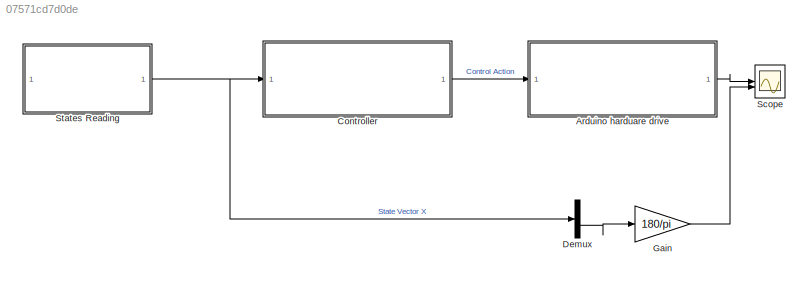
MODEL slx_07571cd7d0de
KIND model
CONFIG AbsTol = auto
CONFIG EnableMultiTasking = on
CONFIG FixedStep = auto
CONFIG MaxStep = auto
CONFIG MinStep = auto
CONFIG RelTol = 1e-3
CONFIG SampleTimeConstraint = Unconstrained
CONFIG SolverName = ode45
CONFIG StartTime = 0.0
CONFIG StopTime = 10.0
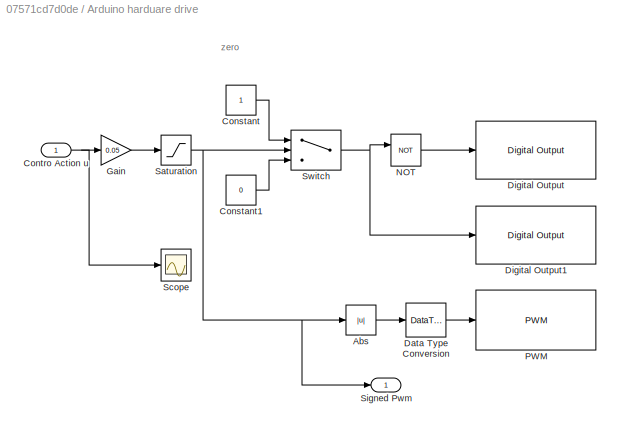
BLOCK [SubSystem] Arduino harduare drive
BLOCK [Abs] Arduino harduare drive/Abs
  SaturateOnIntegerOverflow = off
BLOCK [Constant] Arduino harduare drive/Constant
BLOCK [Constant] Arduino harduare drive/Constant1
  Value = 0
BLOCK [Inport] Arduino harduare drive/Contro Action u
BLOCK [DataTypeConversion] Arduino harduare drive/Data Type Conversion
  OutDataTypeStr = uint16
  RndMeth = Floor
  SaturateOnIntegerOverflow = off
BLOCK [Reference] Arduino harduare drive/Digital Output  REF=arduinolib/Digital Output
  SourceBlock = arduinolib/Digital Output
  SourceType = Arduino Digital Output
BLOCK [Reference] Arduino harduare drive/Digital Output1  REF=arduinolib/Digital Output
  SourceBlock = arduinolib/Digital Output
  SourceType = Arduino Digital Output
BLOCK [Gain] Arduino harduare drive/Gain
  Gain = 0.05
BLOCK [Logic] Arduino harduare drive/NOT
  AllPortsSameDT = off
  IconShape = distinctive
  Operator = NOT
  OutDataTypeStr = boolean
BLOCK [Reference] Arduino harduare drive/PWM  REF=arduinolib/PWM
  SourceBlock = arduinolib/PWM
  SourceType = Arduino PWM
BLOCK [Saturate] Arduino harduare drive/Saturation
  LockScale = on
  LowerLimit = -255
  UpperLimit = 255
BLOCK [Scope] Arduino harduare drive/Scope
  Floating = off
  NumInputPorts = 1
  ScopeSpecificationString = Simulink.scopes.TimeScopeBlockCfg('CurrentConfiguration', extmgr.ConfigurationSet(extmgr.Configuration('Core','General UI',true),extmgr.Configuration('Core','Source UI',true),extmgr.Configuration('Sources','WiredSimulink',true,'DataLoggingVariableName','ScopeData1'),extmgr.Configuration('Visuals','Time Domain',true,'SerializedDisplays',{struct('MinYLimReal','-46623.4314','MaxYLimReal','-18112.5549...<+1499ch>
BLOCK [Outport] Arduino harduare drive/Signed Pwm
BLOCK [Switch] Arduino harduare drive/Switch
  Criteria = u2 > Threshold
  InputSameDT = off
  SaturateOnIntegerOverflow = off
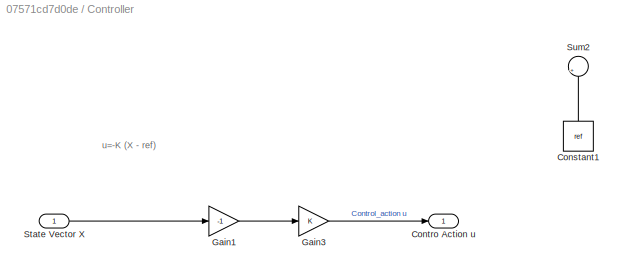
BLOCK [SubSystem] Controller
BLOCK [Constant] Controller/Constant1
  Commented = on
  NameLocation = right
  Value = ref
BLOCK [Outport] Controller/Contro Action u
BLOCK [Gain] Controller/Gain1
  Gain = -1
BLOCK [Gain] Controller/Gain3
  Gain = K
  Multiplication = Matrix(K*u)
BLOCK [Inport] Controller/State Vector X
BLOCK [Sum] Controller/Sum2
  Commented = on
  Inputs = |+-
  NameLocation = top
BLOCK [Demux] Demux
BLOCK [Gain] Gain
  Gain = 180/pi
BLOCK [Scope] Scope
  Floating = off
  NumInputPorts = 2
  ScopeSpecificationString = Simulink.scopes.TimeScopeBlockCfg('CurrentConfiguration', extmgr.ConfigurationSet(extmgr.Configuration('Core','General UI',true),extmgr.Configuration('Core','Source UI',true),extmgr.Configuration('Sources','WiredSimulink',true),extmgr.Configuration('Visuals','Time Domain',true,'SerializedDisplays',{struct('MinYLimReal','-355.00000','MaxYLimReal','-155.00000','YLabelReal','','MinYLimMag',' 0.00000'...<+2022ch>
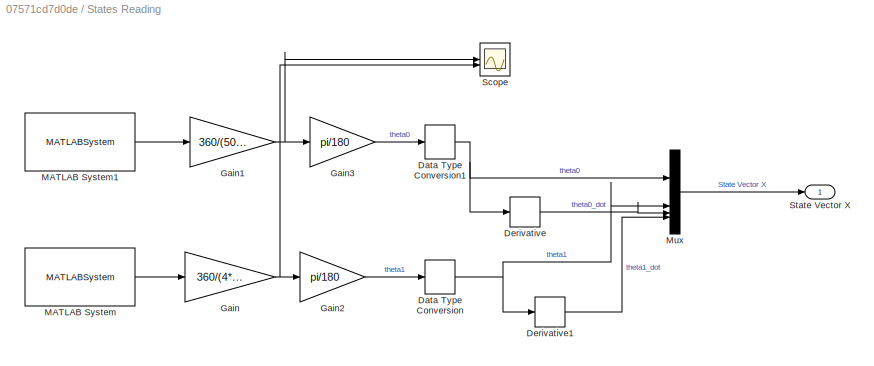
BLOCK [SubSystem] States Reading
BLOCK [DataTypeConversion] States Reading/Data Type Conversion
  OutDataTypeStr = double
  RndMeth = Floor
  SaturateOnIntegerOverflow = off
BLOCK [DataTypeConversion] States Reading/Data Type Conversion1
  OutDataTypeStr = double
  RndMeth = Floor
  SaturateOnIntegerOverflow = off
BLOCK [Derivative] States Reading/Derivative
BLOCK [Derivative] States Reading/Derivative1
BLOCK [Gain] States Reading/Gain
  Gain = 360/(4*600)
BLOCK [Gain] States Reading/Gain1
  Gain = 360/(500*4)
BLOCK [Gain] States Reading/Gain2
  Gain = pi/180
BLOCK [Gain] States Reading/Gain3
  Gain = pi/180
BLOCK [MATLABSystem] States Reading/MATLAB System
  Encoder = 0
  MaskDisplay = disp('Encoder');\nport_label('output',1,'y');
  MaskType = Encoder_arduino
  PinA = 2
  PinB = 3
  SampleTime = 0.001
  System = Encoder_arduino
BLOCK [MATLABSystem] States Reading/MATLAB System1
  Encoder = 1
  MaskDisplay = disp('Encoder');\nport_label('output',1,'y');
  MaskType = Encoder_arduino
  PinA = 18
  PinB = 19
  SampleTime = 0.001
  System = Encoder_arduino
BLOCK [Mux] States Reading/Mux
  DisplayOption = bar
BLOCK [Scope] States Reading/Scope
  Floating = off
  NumInputPorts = 2
  ScopeSpecificationString = Simulink.scopes.TimeScopeBlockCfg('CurrentConfiguration', extmgr.ConfigurationSet(extmgr.Configuration('Core','General UI',true),extmgr.Configuration('Core','Source UI',true),extmgr.Configuration('Sources','WiredSimulink',true,'DataLoggingVariableName','ScopeData1'),extmgr.Configuration('Visuals','Time Domain',true,'SerializedDisplays',{struct('MinYLimReal','-27.43125','MaxYLimReal','204.88125','Y...<+1435ch>
BLOCK [Outport] States Reading/State Vector X
ANNOTATION Arduino harduare drive: zero
ANNOTATION Controller: u=-K (X - ref)
LINE Arduino harduare drive/Abs:1 -> Arduino harduare drive/Data Type Conversion:1
LINE Arduino harduare drive/Constant1:1 -> Arduino harduare drive/Switch:3
LINE Arduino harduare drive/Constant:1 -> Arduino harduare drive/Switch:1
NET Arduino harduare drive/Contro Action u:1 -> Arduino harduare drive/Gain:1, Arduino harduare drive/Scope:1
LINE Arduino harduare drive/Data Type Conversion:1 -> Arduino harduare drive/PWM:1
LINE Arduino harduare drive/Gain:1 -> Arduino harduare drive/Saturation:1
LINE Arduino harduare drive/NOT:1 -> Arduino harduare drive/Digital Output:1
NET Arduino harduare drive/Saturation:1 -> Arduino harduare drive/Abs:1, Arduino harduare drive/Signed Pwm:1, Arduino harduare drive/Switch:2
NET Arduino harduare drive/Switch:1 -> Arduino harduare drive/Digital Output1:1, Arduino harduare drive/NOT:1
LINE Arduino harduare drive:1 -> Scope:1
LINE Controller/Constant1:1 -> Controller/Sum2:2
LINE Controller/Gain1:1 -> Controller/Gain3:1
LINE Controller/Gain3:1 -> Controller/Contro Action u:1
LINE Controller/State Vector X:1 -> Controller/Gain1:1
LINE Controller:1 -> Arduino harduare drive:1
LINE Demux:2 -> Gain:1
LINE Gain:1 -> Scope:2
NET States Reading/Data Type Conversion1:1 -> States Reading/Derivative:1, States Reading/Mux:1
NET States Reading/Data Type Conversion:1 -> States Reading/Derivative1:1, States Reading/Mux:2
LINE States Reading/Derivative1:1 -> States Reading/Mux:4
LINE States Reading/Derivative:1 -> States Reading/Mux:3
NET States Reading/Gain1:1 -> States Reading/Gain3:1, States Reading/Scope:1
LINE States Reading/Gain2:1 -> States Reading/Data Type Conversion:1
LINE States Reading/Gain3:1 -> States Reading/Data Type Conversion1:1
NET States Reading/Gain:1 -> States Reading/Gain2:1, States Reading/Scope:2
LINE States Reading/MATLAB System1:1 -> States Reading/Gain1:1
LINE States Reading/MATLAB System:1 -> States Reading/Gain:1
LINE States Reading/Mux:1 -> States Reading/State Vector X:1
NET States Reading:1 -> Controller:1, Demux:1
note: NET lines group one-source signal fan-out (src -> all destinations, sorted); 1:1 wires keep LINE
